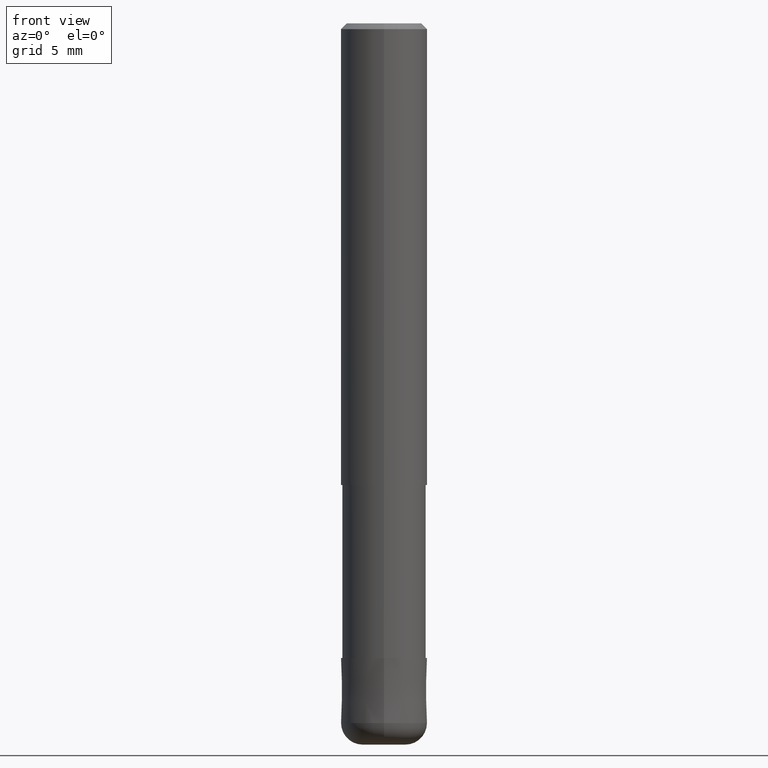
[diagram: clean part render]
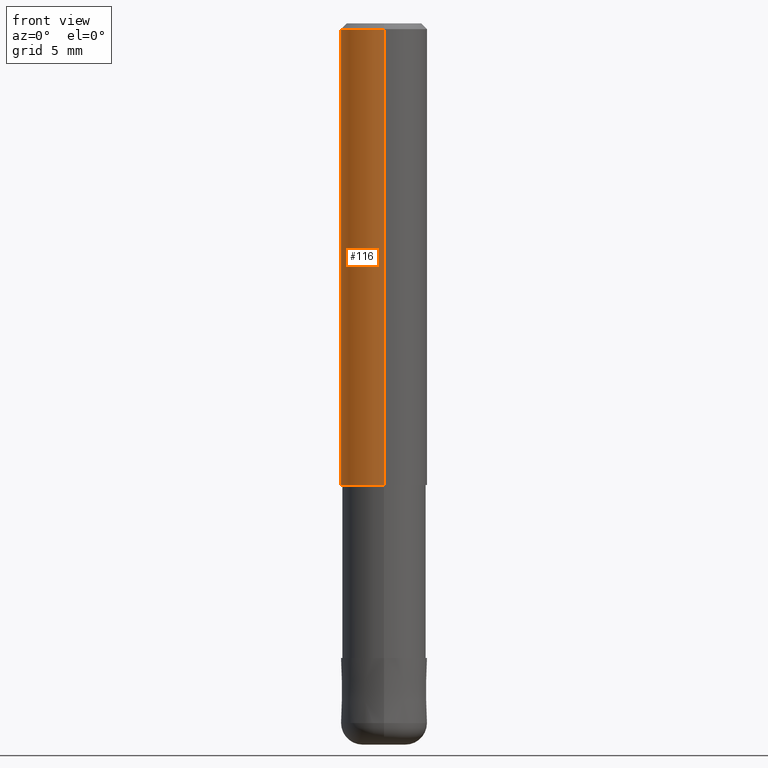
[diagram: same view with one face highlighted and labeled with its STEP entity id]
A machine part, front view. The second image highlights one B-rep face of the part: STEP entity #116.
In plain terms, the highlighted cylindrical surface (partial cylindrical patch) has radius 3 mm, axis along (-0, -0, 1).
Its self-contained STEP definition (entity closure, byte-faithful):
#96=EDGE_CURVE('',#144,#134,#234,.T.);
#110=EDGE_CURVE('',#142,#136,#249,.T.);
#116=ADVANCED_FACE('',(#256),#257,.T.);
#134=VERTEX_POINT('',#278);
#136=VERTEX_POINT('',#280);
#142=VERTEX_POINT('',#286);
#144=VERTEX_POINT('',#288);
#150=EDGE_CURVE('',#136,#134,#294,.T.);
#196=EDGE_CURVE('',#144,#142,#349,.T.);
#234=CIRCLE('',#380,3.0);
#249=CIRCLE('',#401,3.0);
#256=FACE_OUTER_BOUND('',#410,.T.);
#257=CYLINDRICAL_SURFACE('',#411,3.0);
#278=CARTESIAN_POINT('',(0.0,3.0,-32.0));
#280=CARTESIAN_POINT('',(0.0,3.0,-0.399999999999999));
#286=CARTESIAN_POINT('',(3.67381906146713E-016,-3.0,-0.399999999999999));
#288=CARTESIAN_POINT('',(3.67381906146713E-016,-3.0,-32.0));
#294=LINE('',#451,#452);
#349=LINE('',#518,#519);
#380=AXIS2_PLACEMENT_3D('',#548,#549,#550);
#401=AXIS2_PLACEMENT_3D('',#568,#569,#570);
#410=EDGE_LOOP('',(#581,#582,#583,#584));
#411=AXIS2_PLACEMENT_3D('',#585,#586,#587);
#451=CARTESIAN_POINT('',(-3.67381906146713E-016,3.0,-16.2));
#452=VECTOR('',#618,1.0);
#518=CARTESIAN_POINT('',(3.67381906146713E-016,-3.0,-16.2));
#519=VECTOR('',#704,1.0);
#548=CARTESIAN_POINT('',(0.0,0.0,-32.0));
#549=DIRECTION('',(0.0,0.0,-1.0));
#550=DIRECTION('',(0.0,1.0,0.0));
#568=CARTESIAN_POINT('',(0.0,0.0,-0.399999999999999));
#569=DIRECTION('',(0.0,0.0,-1.0));
#570=DIRECTION('',(0.0,1.0,0.0));
#581=ORIENTED_EDGE('',*,*,#150,.T.);
#582=ORIENTED_EDGE('',*,*,#96,.F.);
#583=ORIENTED_EDGE('',*,*,#196,.T.);
#584=ORIENTED_EDGE('',*,*,#110,.T.);
#585=CARTESIAN_POINT('',(0.0,0.0,-16.2));
#586=DIRECTION('',(-0.0,-0.0,1.0));
#587=DIRECTION('',(0.0,1.0,0.0));
#618=DIRECTION('',(0.0,0.0,-1.0));
#704=DIRECTION('',(-0.0,-0.0,1.0));